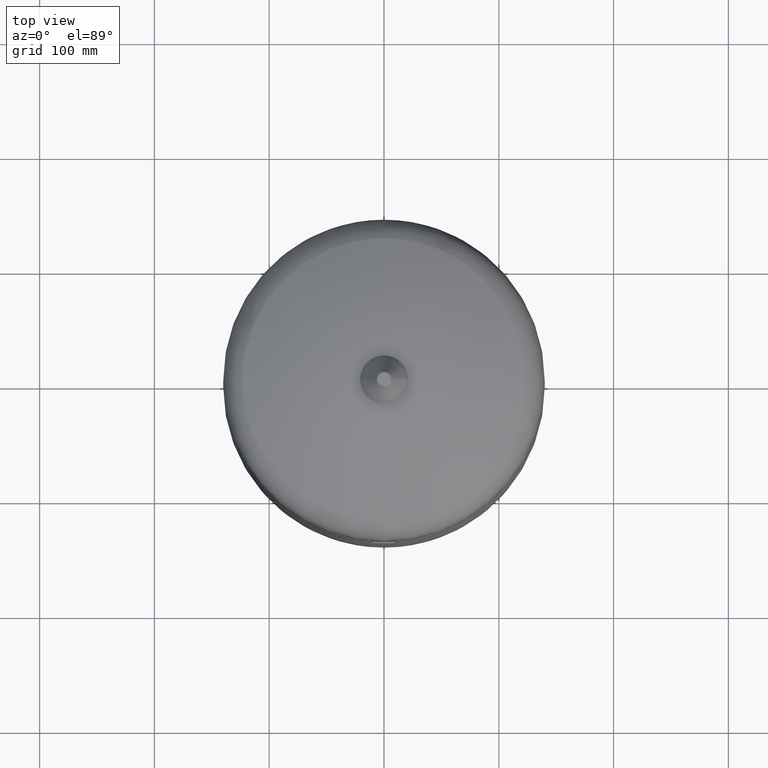
[diagram: clean part render]
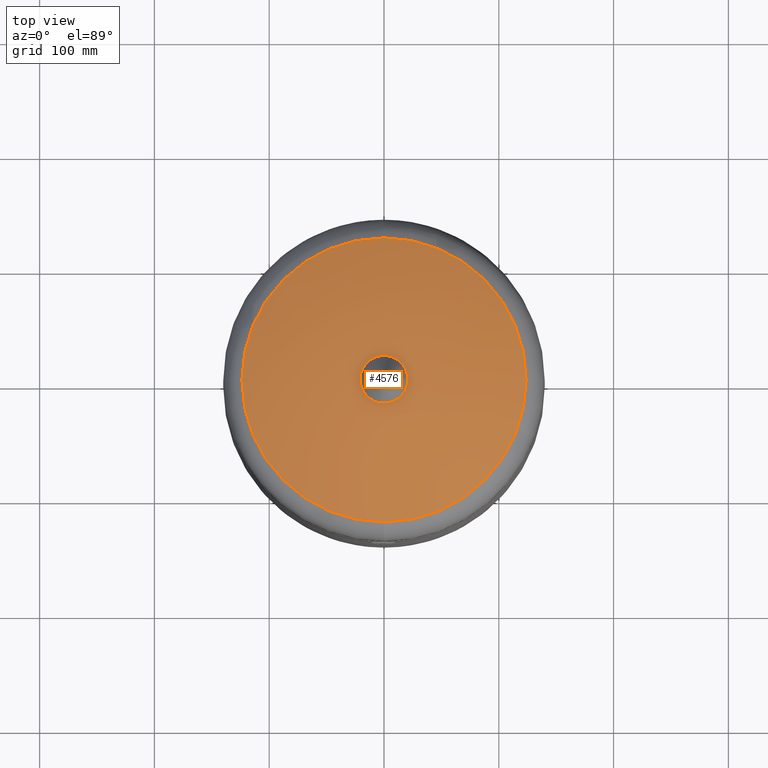
[diagram: same view with one face highlighted and labeled with its STEP entity id]
A machine part, top view. The second image highlights one B-rep face of the part: STEP entity #4576.
In plain terms, the highlighted spherical surface has radius 281 mm.
Its self-contained STEP definition (entity closure, byte-faithful):
#4515=CARTESIAN_POINT('',(2.111510E-015,123.773809523809520,444.271766307614710));
#4516=VERTEX_POINT('',#4515);
#4532=CARTESIAN_POINT('',(-1.304591E-014,-123.773809523809550,444.271766307614600));
#4533=VERTEX_POINT('',#4532);
#4541=CARTESIAN_POINT('',(-123.773809523809550,-8.043409E-015,444.271766307614660));
#4542=VERTEX_POINT('',#4541);
#4543=CARTESIAN_POINT('',(-5.074429E-015,-8.043409E-015,444.271766307614660));
#4544=DIRECTION('',(0.0,0.0,-1.0));
#4545=DIRECTION('',(-1.0,0.0,0.0));
#4546=AXIS2_PLACEMENT_3D('',#4543,#4544,#4545);
#4547=CIRCLE('',#4546,123.773809523809530);
#4548=EDGE_CURVE('',#4533,#4542,#4547,.T.);
#4550=CARTESIAN_POINT('',(-5.074429E-015,-8.043409E-015,444.271766307614660));
#4551=DIRECTION('',(0.0,0.0,-1.0));
#4552=DIRECTION('',(-1.0,0.0,0.0));
#4553=AXIS2_PLACEMENT_3D('',#4550,#4551,#4552);
#4554=CIRCLE('',#4553,123.773809523809530);
#4555=EDGE_CURVE('',#4542,#4516,#4554,.T.);
#4560=CARTESIAN_POINT('',(-5.535404E-014,6.919254E-014,192.0));
#4561=DIRECTION('',(0.0,1.0,0.0));
#4562=DIRECTION('',(1.0,0.0,0.0));
#4563=AXIS2_PLACEMENT_3D('',#4560,#4561,#4562);
#4564=SPHERICAL_SURFACE('',#4563,281.000000000000110);
#4565=ORIENTED_EDGE('',*,*,#4555,.F.);
#4566=ORIENTED_EDGE('',*,*,#4548,.F.);
#4567=CARTESIAN_POINT('',(-5.074429E-015,-8.043409E-015,444.271766307614660));
#4568=DIRECTION('',(0.0,0.0,-1.0));
#4569=DIRECTION('',(-1.0,0.0,0.0));
#4570=AXIS2_PLACEMENT_3D('',#4567,#4568,#4569);
#4571=CIRCLE('',#4570,123.773809523809530);
#4572=EDGE_CURVE('',#4516,#4533,#4571,.T.);
#4573=ORIENTED_EDGE('',*,*,#4572,.F.);
#4574=EDGE_LOOP('',(#4565,#4566,#4573));
#4575=FACE_OUTER_BOUND('',#4574,.T.);
#4576=ADVANCED_FACE('',(#4575),#4564,.T.);